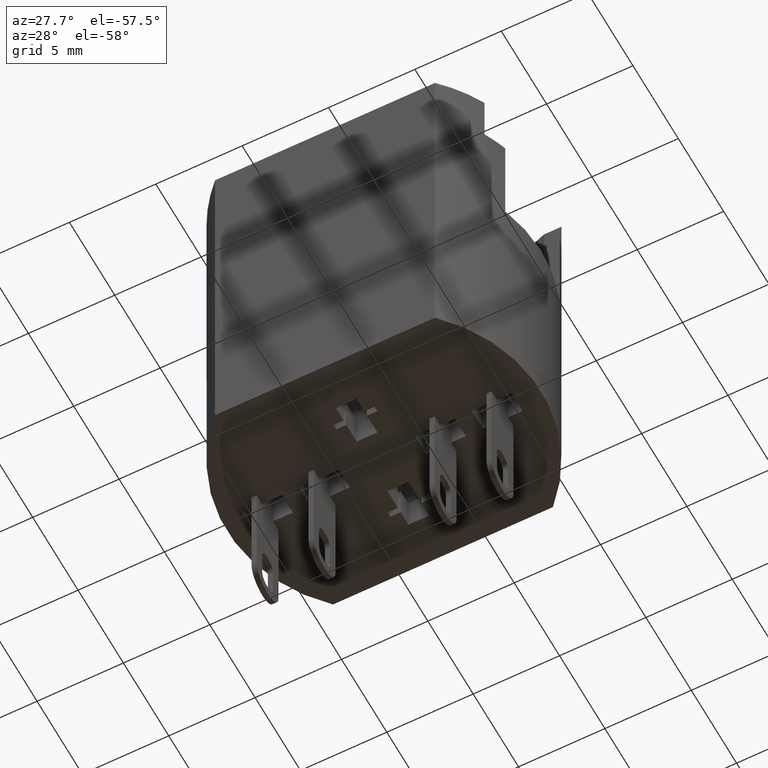
[diagram: clean part render]
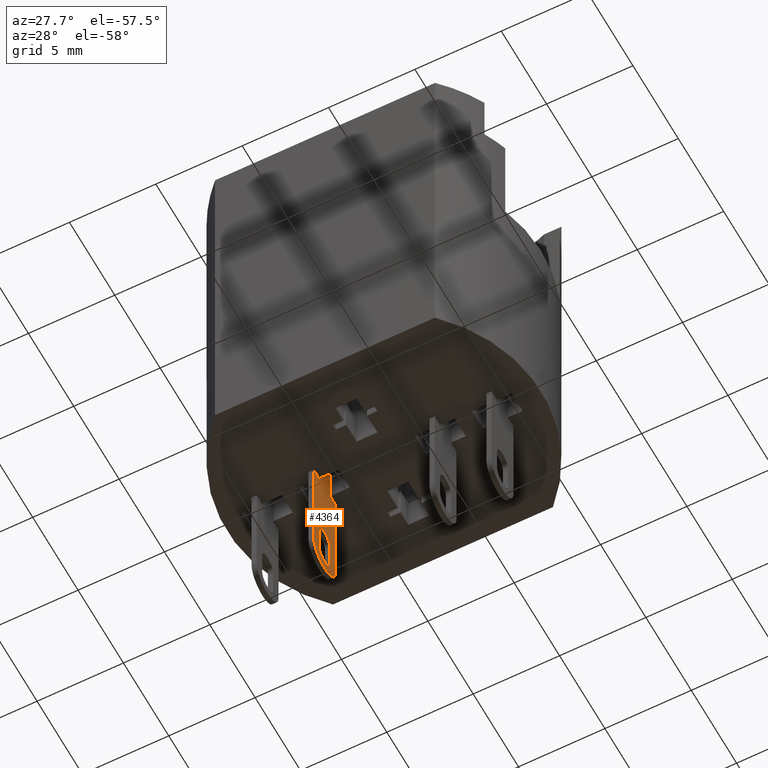
[diagram: same view with one face highlighted and labeled with its STEP entity id]
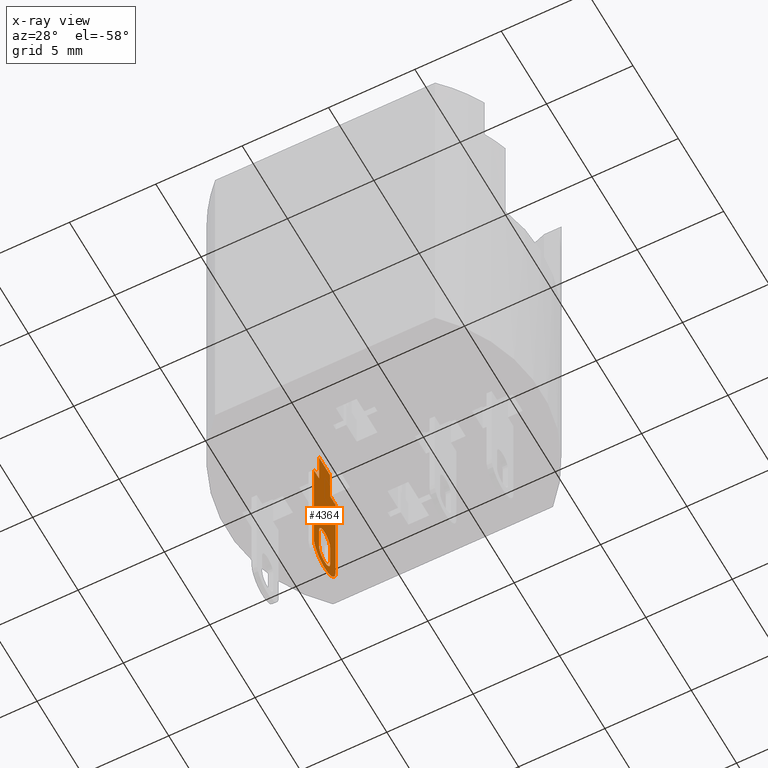
[diagram: x-ray of the same camera — body ghosted, the highlighted face saturated]
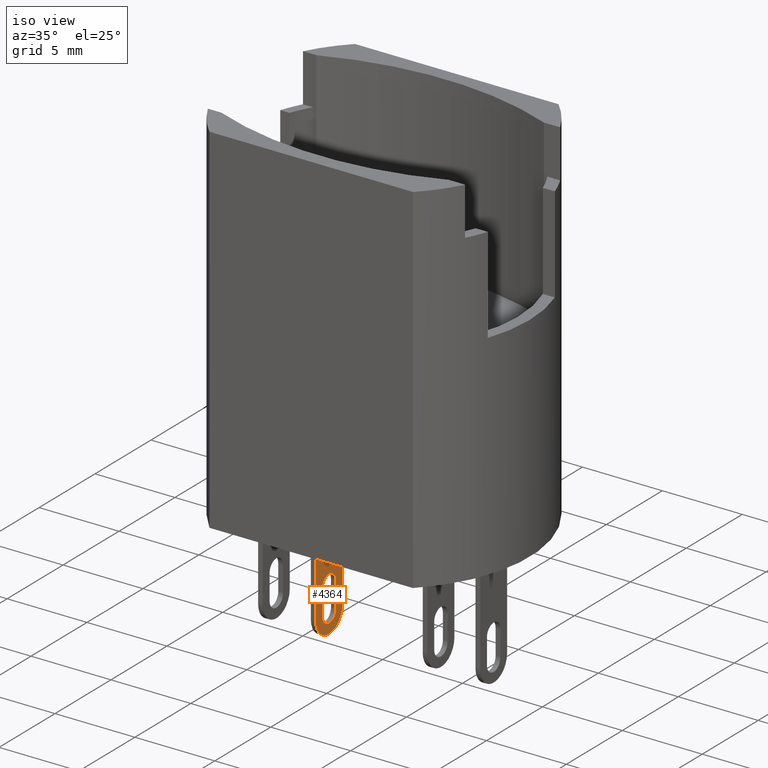
[diagram: same view with one face highlighted and labeled with its STEP entity id]
A machine part, auxiliary view. The second image highlights one B-rep face of the part: STEP entity #4364.
The next image is the same camera in x-ray: the body ghosted, the highlighted face saturated — about 0% of this face is hidden behind the body in this view.
A second angle (iso view) of the same face is appended — the face is thin or edge-on in the first view.
In plain terms, the highlighted planar face has unit normal (1, 0, 0).
Its self-contained STEP definition (entity closure, byte-faithful):
#77=FACE_BOUND('',#432,.T.);
#108=CIRCLE('',#4613,0.6);
#110=CIRCLE('',#4616,0.6);
#113=CIRCLE('',#4622,1.2);
#200=FACE_OUTER_BOUND('',#431,.T.);
#431=EDGE_LOOP('',(#3037,#3038,#3039,#3040,#3041,#3042,#3043,#3044));
#432=EDGE_LOOP('',(#3045,#3046,#3047,#3048));
#713=LINE('',#6246,#1285);
#717=LINE('',#6255,#1289);
#727=LINE('',#6276,#1299);
#731=LINE('',#6291,#1303);
#748=LINE('',#6340,#1320);
#749=LINE('',#6341,#1321);
#750=LINE('',#6343,#1322);
#751=LINE('',#6344,#1323);
#752=LINE('',#6345,#1324);
#1285=VECTOR('',#5031,10.);
#1289=VECTOR('',#5037,10.);
#1299=VECTOR('',#5051,10.);
#1303=VECTOR('',#5069,10.);
#1320=VECTOR('',#5112,10.);
#1321=VECTOR('',#5113,10.);
#1322=VECTOR('',#5114,10.);
#1323=VECTOR('',#5115,10.);
#1324=VECTOR('',#5116,10.);
#1844=VERTEX_POINT('',#6242);
#1846=VERTEX_POINT('',#6245);
#1849=VERTEX_POINT('',#6252);
#1850=VERTEX_POINT('',#6254);
#1857=VERTEX_POINT('',#6270);
#1859=VERTEX_POINT('',#6274);
#1860=VERTEX_POINT('',#6278);
#1862=VERTEX_POINT('',#6284);
#1868=VERTEX_POINT('',#6304);
#1881=VERTEX_POINT('',#6338);
#1882=VERTEX_POINT('',#6339);
#1883=VERTEX_POINT('',#6342);
#2291=EDGE_CURVE('',#1844,#1846,#713,.T.);
#2295=EDGE_CURVE('',#1849,#1850,#717,.T.);
#2305=EDGE_CURVE('',#1857,#1859,#727,.T.);
#2306=EDGE_CURVE('',#1860,#1859,#108,.T.);
#2309=EDGE_CURVE('',#1857,#1862,#110,.T.);
#2313=EDGE_CURVE('',#1860,#1862,#731,.T.);
#2320=EDGE_CURVE('',#1846,#1868,#113,.T.);
#2336=EDGE_CURVE('',#1881,#1882,#748,.T.);
#2337=EDGE_CURVE('',#1881,#1868,#749,.T.);
#2338=EDGE_CURVE('',#1883,#1844,#750,.T.);
#2339=EDGE_CURVE('',#1850,#1883,#751,.T.);
#2340=EDGE_CURVE('',#1882,#1849,#752,.T.);
#3037=ORIENTED_EDGE('',*,*,#2336,.F.);
#3038=ORIENTED_EDGE('',*,*,#2337,.T.);
#3039=ORIENTED_EDGE('',*,*,#2320,.F.);
#3040=ORIENTED_EDGE('',*,*,#2291,.F.);
#3041=ORIENTED_EDGE('',*,*,#2338,.F.);
#3042=ORIENTED_EDGE('',*,*,#2339,.F.);
#3043=ORIENTED_EDGE('',*,*,#2295,.F.);
#3044=ORIENTED_EDGE('',*,*,#2340,.F.);
#3045=ORIENTED_EDGE('',*,*,#2309,.F.);
#3046=ORIENTED_EDGE('',*,*,#2305,.T.);
#3047=ORIENTED_EDGE('',*,*,#2306,.F.);
#3048=ORIENTED_EDGE('',*,*,#2313,.T.);
#4145=PLANE('',#4631);
#4364=ADVANCED_FACE('',(#200,#77),#4145,.T.);
#4613=AXIS2_PLACEMENT_3D('',#6279,#5054,#5055);
#4616=AXIS2_PLACEMENT_3D('',#6285,#5061,#5062);
#4622=AXIS2_PLACEMENT_3D('',#6305,#5081,#5082);
#4631=AXIS2_PLACEMENT_3D('',#6337,#5110,#5111);
#5031=DIRECTION('',(2.01228126592551E-16,9.46685559635839E-16,-1.));
#5037=DIRECTION('',(-3.35824085633972E-15,1.,9.46685559635838E-16));
#5051=DIRECTION('',(2.01228126592553E-16,4.75832044727849E-16,-1.));
#5054=DIRECTION('center_axis',(1.,3.35824085633972E-15,2.01228126592554E-16));
#5055=DIRECTION('ref_axis',(2.35337335747503E-15,-0.707106781186546,-0.707106781186549));
#5061=DIRECTION('center_axis',(1.,3.35824085633972E-15,2.01228126592554E-16));
#5062=DIRECTION('ref_axis',(-2.35337335747503E-15,0.707106781186548,0.707106781186548));
#5069=DIRECTION('',(-2.01228126592552E-16,-6.49304392325529E-16,1.));
#5081=DIRECTION('center_axis',(-1.,-3.35824085633972E-15,-2.01228126592554E-16));
#5082=DIRECTION('ref_axis',(2.35337335747503E-15,-0.707106781186547,-0.707106781186548));
#5110=DIRECTION('center_axis',(1.,3.35824085633972E-15,2.01228126592554E-16));
#5111=DIRECTION('ref_axis',(3.35824085633972E-15,-1.,-9.46685559635838E-16));
#5112=DIRECTION('',(-1.67774033623372E-15,1.,3.88578058618806E-16));
#5113=DIRECTION('',(2.01228126592551E-16,9.46685559635839E-16,-1.));
#5114=DIRECTION('',(-1.67774033623372E-15,1.,3.88578058618806E-16));
#5115=DIRECTION('',(2.01228126592556E-16,3.88578058618806E-16,-1.));
#5116=DIRECTION('',(-2.01228126592556E-16,-3.88578058618806E-16,1.));
#6242=CARTESIAN_POINT('',(-3.35,1.19999999999999,4.23307154475813E-15));
#6245=CARTESIAN_POINT('',(-3.35000000000011,1.2,-6.5));
#6246=CARTESIAN_POINT('',(-3.35000000000011,1.19999999999999,2.));
#6252=CARTESIAN_POINT('',(-3.35,-0.600000000000008,2.));
#6254=CARTESIAN_POINT('',(-3.35,0.599999999999992,2.));
#6255=CARTESIAN_POINT('',(-3.35000000000011,0.599999999999991,2.));
#6270=CARTESIAN_POINT('',(-3.35000000000011,0.599999999999995,-4.89999999999999));
#6274=CARTESIAN_POINT('',(-3.35000000000011,0.599999999999995,-6.49999999999999));
#6276=CARTESIAN_POINT('',(-3.35000000000011,0.599999999999993,-1.15));
#6278=CARTESIAN_POINT('',(-3.3500000000001,-0.600000000000004,-6.49999999999999));
#6279=CARTESIAN_POINT('Origin',(-3.3500000000001,-4.56901901476071E-15,
-6.49999999999999));
#6284=CARTESIAN_POINT('',(-3.3500000000001,-0.600000000000005,-4.89999999999999));
#6285=CARTESIAN_POINT('Origin',(-3.35000000000011,-5.58312427853903E-15,
-4.89999999999999));
#6291=CARTESIAN_POINT('',(-3.3500000000001,-0.600000000000007,-2.55));
#6304=CARTESIAN_POINT('',(-3.3500000000001,-1.2,-6.5));
#6305=CARTESIAN_POINT('Origin',(-3.3500000000001,1.4826877400041E-15,-6.5));
#6337=CARTESIAN_POINT('Origin',(-3.35000000000011,1.19999999999999,2.));
#6338=CARTESIAN_POINT('',(-3.35,-1.20000000000001,3.300484204073E-15));
#6339=CARTESIAN_POINT('',(-3.35,-0.600000000000007,3.53363103924428E-15));
#6340=CARTESIAN_POINT('',(-3.35,-0.600000000000006,3.53363103924428E-15));
#6341=CARTESIAN_POINT('',(-3.3500000000001,-1.20000000000001,2.));
#6342=CARTESIAN_POINT('',(-3.35,0.599999999999993,3.99992470958685E-15));
#6343=CARTESIAN_POINT('',(-3.35,-0.600000000000006,3.53363103924428E-15));
#6344=CARTESIAN_POINT('',(-3.35,0.599999999999993,3.99992470958685E-15));
#6345=CARTESIAN_POINT('',(-3.35,-0.600000000000007,3.53363103924428E-15));